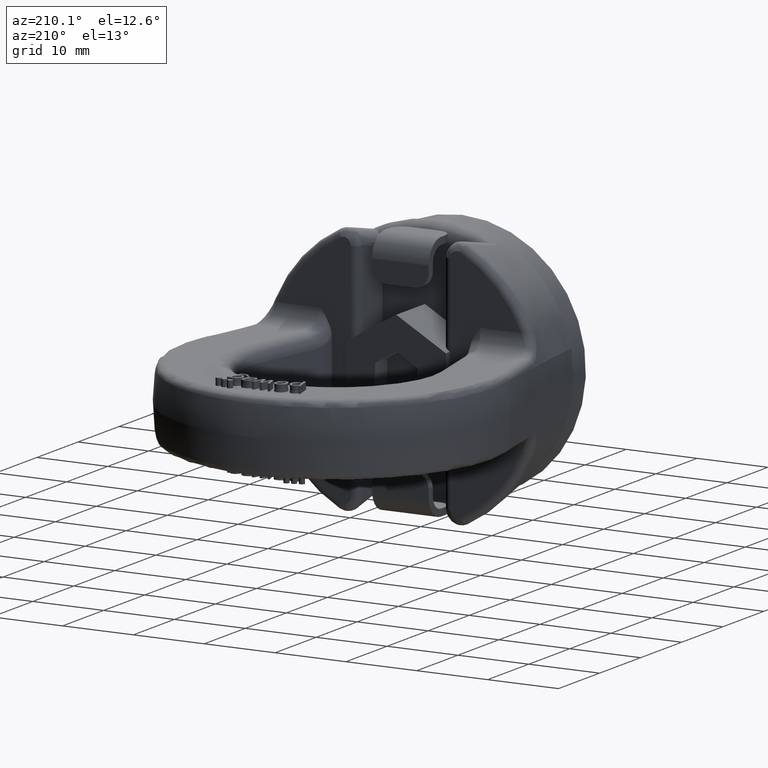
[diagram: clean part render]
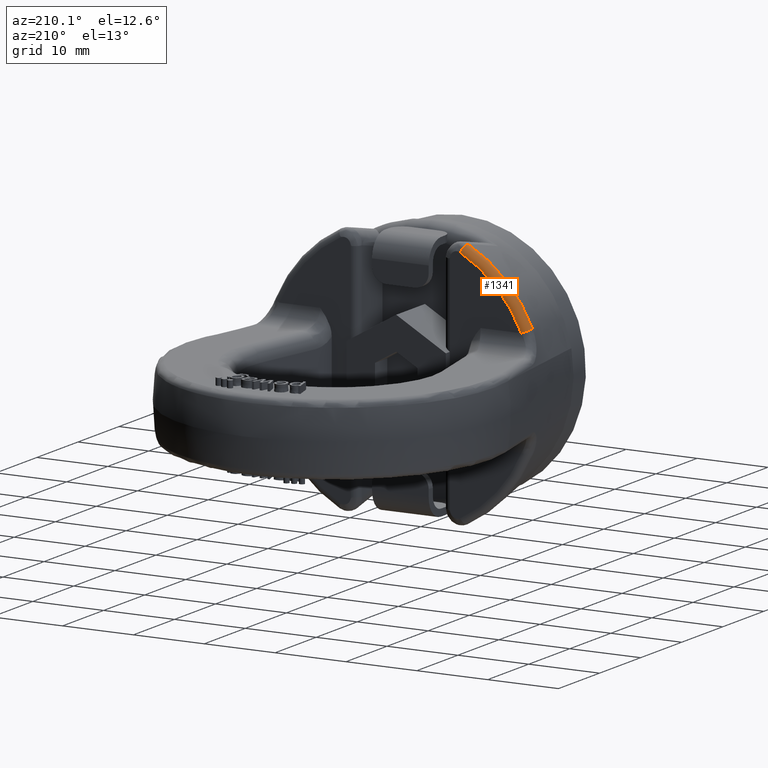
[diagram: same view with one face highlighted and labeled with its STEP entity id]
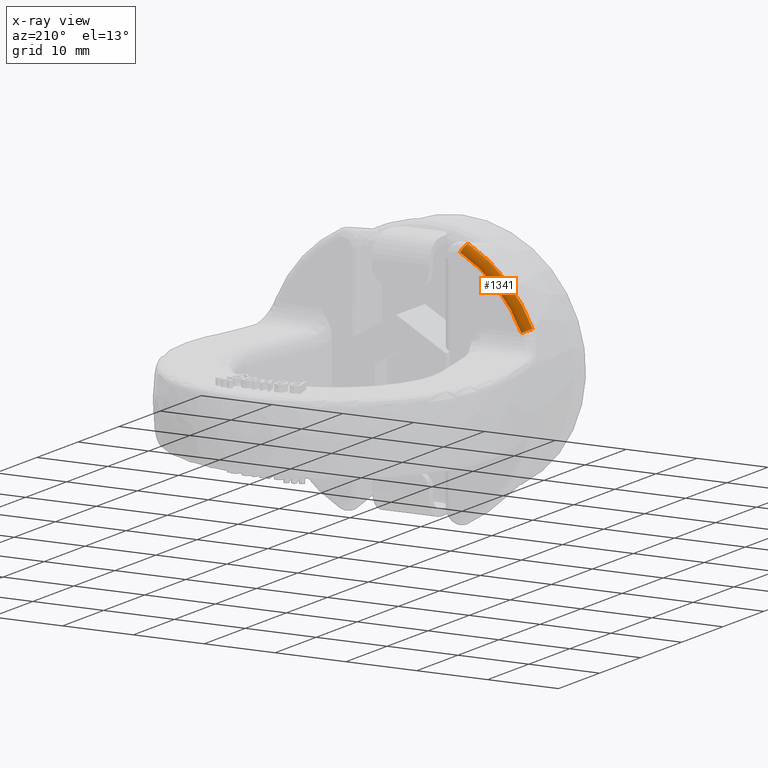
[diagram: x-ray of the same camera — body ghosted, the highlighted face saturated]
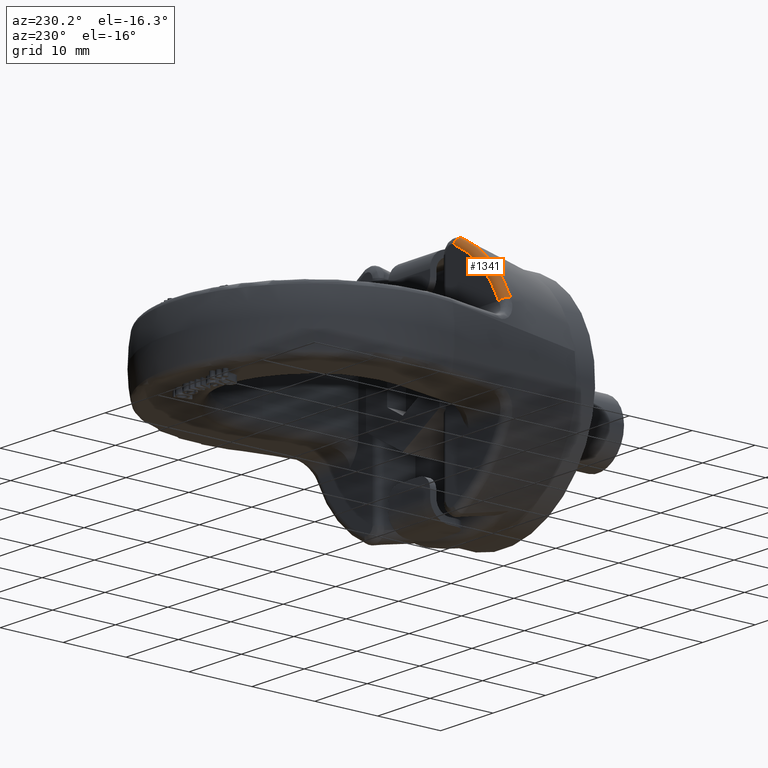
[diagram: same view with one face highlighted and labeled with its STEP entity id]
A machine part, auxiliary view. The second image highlights one B-rep face of the part: STEP entity #1341.
The next image is the same camera in x-ray: the body ghosted, the highlighted face saturated — about 0% of this face is hidden behind the body in this view.
A second angle (auxiliary view) of the same face is appended — the face is thin or edge-on in the first view.
In plain terms, the highlighted toroidal blend (fillet) surface has major radius 18.6548 mm and minor (blend) radius 1 mm.
Its self-contained STEP definition (entity closure, byte-faithful):
#1015=TOROIDAL_SURFACE('',#5159,18.6547584905246,1.);
#1117=FACE_OUTER_BOUND('',#1857,.T.);
#1341=ADVANCED_FACE('',(#1117),#1015,.T.);
#1672=CIRCLE('',#5101,18.6547584905246);
#1683=CIRCLE('',#5117,19.6357807990695);
#1693=CIRCLE('',#5157,1.);
#1694=CIRCLE('',#5158,1.);
#1857=EDGE_LOOP('',(#2918,#2919,#2920,#2921));
#2918=ORIENTED_EDGE('',*,*,#4413,.T.);
#2919=ORIENTED_EDGE('',*,*,#4322,.F.);
#2920=ORIENTED_EDGE('',*,*,#4414,.F.);
#2921=ORIENTED_EDGE('',*,*,#4365,.F.);
#3927=VERTEX_POINT('',#6548);
#3938=VERTEX_POINT('',#6593);
#3979=VERTEX_POINT('',#6832);
#3980=VERTEX_POINT('',#6834);
#4322=EDGE_CURVE('',#3938,#3927,#1672,.T.);
#4365=EDGE_CURVE('',#3979,#3980,#1683,.T.);
#4413=EDGE_CURVE('',#3979,#3927,#1693,.T.);
#4414=EDGE_CURVE('',#3980,#3938,#1694,.T.);
#5101=AXIS2_PLACEMENT_3D('',#6594,#5421,#5422);
#5117=AXIS2_PLACEMENT_3D('',#6833,#5467,#5468);
#5157=AXIS2_PLACEMENT_3D('',#7079,#5569,#5570);
#5158=AXIS2_PLACEMENT_3D('',#7098,#5571,#5572);
#5159=AXIS2_PLACEMENT_3D('',#7099,#5573,#5574);
#5421=DIRECTION('',(0.,1.,0.));
#5422=DIRECTION('',(0.,0.,1.));
#5467=DIRECTION('',(0.,-1.,0.));
#5468=DIRECTION('',(0.,0.,-1.));
#5569=DIRECTION('',(-0.891688752894817,-1.52322493793616E-15,-0.452649056069805));
#5570=DIRECTION('',(-0.452649056069804,0.,0.891688752894818));
#5571=DIRECTION('',(-0.402042192280833,3.26271806076208E-16,-0.915621141971952));
#5572=DIRECTION('',(-0.915621141971953,0.,0.402042192280833));
#5573=DIRECTION('',(0.,1.,0.));
#5574=DIRECTION('',(0.,0.,1.));
#6548=CARTESIAN_POINT('',(-8.44405882194627,15.,16.63423833397));
#6593=CARTESIAN_POINT('',(-17.0806912723052,15.,7.5));
#6594=CARTESIAN_POINT('',(-1.26937408619406E-13,15.,4.20507007568095E-14));
#6832=CARTESIAN_POINT('',(-8.88811764389249,13.8061051054376,17.5090048928382));
#6833=CARTESIAN_POINT('',(-9.42158381437761E-14,13.8061051054376,0.));
#6834=CARTESIAN_POINT('',(-17.978936038755,13.8061051054376,7.89441235960377));
#7079=CARTESIAN_POINT('',(-8.44405882194624,14.,16.6342383339699));
#7098=CARTESIAN_POINT('',(-17.0806912723052,14.,7.5));
#7099=CARTESIAN_POINT('',(-1.26937408619406E-13,14.,4.20507007568095E-14));